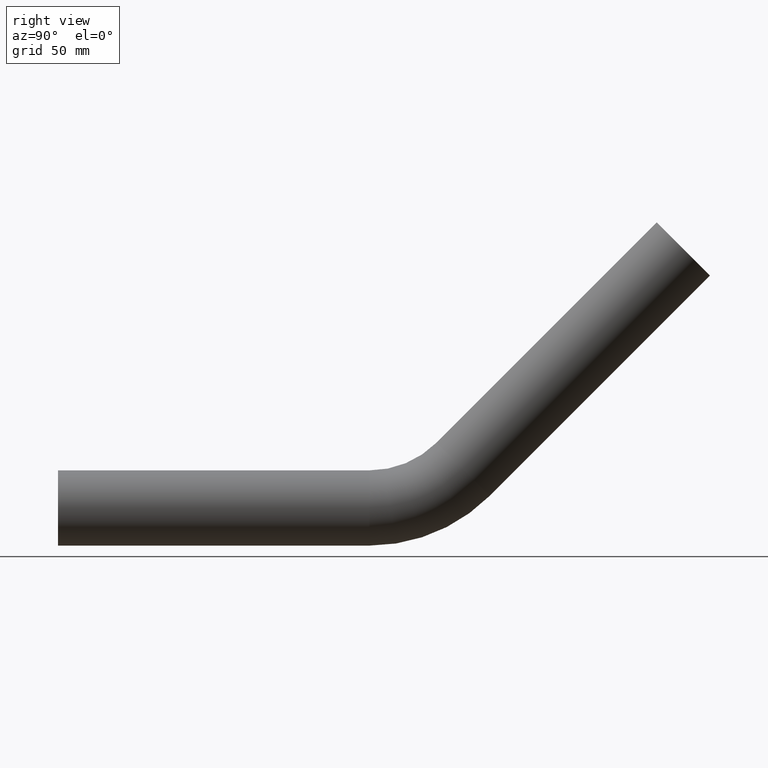
[diagram: clean part render]
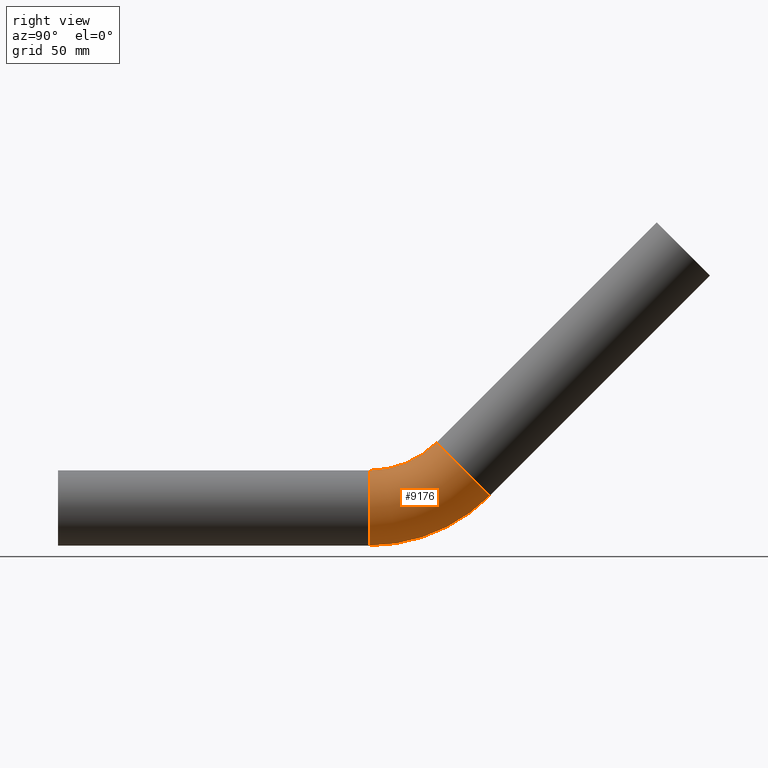
[diagram: same view with one face highlighted and labeled with its STEP entity id]
A machine part, right view. The second image highlights one B-rep face of the part: STEP entity #9176.
In plain terms, the highlighted toroidal blend (fillet) surface has major radius 85 mm and minor (blend) radius 24.15 mm.
Its self-contained STEP definition (entity closure, byte-faithful):
#342 = CIRCLE ( 'NONE', #1485, 24.14999999999999900 ) ;
#703 = CARTESIAN_POINT ( 'NONE',  ( 0.0000000000000000000, 200.0000000000000000, 85.00000000000000000 ) ) ;
#738 = CARTESIAN_POINT ( 'NONE',  ( 0.0000000000000000000, 260.1040764008566300, 24.89592359914358300 ) ) ;
#814 = DIRECTION ( 'NONE',  ( 0.0000000000000000000, 0.7071067811865460200, 0.7071067811865490200 ) ) ;
#863 = VERTEX_POINT ( 'NONE', #1984 ) ;
#977 = CARTESIAN_POINT ( 'NONE',  ( 0.0000000000000000000, 200.0000000000000000, 0.0000000000000000000 ) ) ;
#1006 = CARTESIAN_POINT ( 'NONE',  ( 2.957522019940857900E-015, 200.0000000000000000, 24.14999999999999900 ) ) ;
#1194 = VERTEX_POINT ( 'NONE', #1006 ) ;
#1274 = DIRECTION ( 'NONE',  ( 1.000000000000000000, 0.0000000000000000000, 0.0000000000000000000 ) ) ;
#1485 = AXIS2_PLACEMENT_3D ( 'NONE', #977, #7231, #4421 ) ;
#1773 = CIRCLE ( 'NONE', #11179, 60.85000000000000900 ) ;
#1937 = CIRCLE ( 'NONE', #6016, 24.15000000000000200 ) ;
#1984 = CARTESIAN_POINT ( 'NONE',  ( 2.957522019940857900E-015, 277.1807051665117600, 7.819294833488508600 ) ) ;
#2284 = CARTESIAN_POINT ( 'NONE',  ( -2.957522019940857900E-015, 200.0000000000000000, 85.00000000000000000 ) ) ;
#2969 = DIRECTION ( 'NONE',  ( 0.0000000000000000000, 0.0000000000000000000, -1.000000000000000000 ) ) ;
#3309 = CARTESIAN_POINT ( 'NONE',  ( 0.0000000000000000000, 243.0274476352014700, 41.97255236479867300 ) ) ;
#3418 = EDGE_CURVE ( 'NONE', #1194, #4617, #342, .T. ) ;
#3419 = CARTESIAN_POINT ( 'NONE',  ( 0.0000000000000000000, 200.0000000000000000, -24.14999999999999900 ) ) ;
#4261 = ORIENTED_EDGE ( 'NONE', *, *, #11164, .F. ) ;
#4421 = DIRECTION ( 'NONE',  ( 0.0000000000000000000, 0.0000000000000000000, 1.000000000000000000 ) ) ;
#4617 = VERTEX_POINT ( 'NONE', #3419 ) ;
#4640 = ORIENTED_EDGE ( 'NONE', *, *, #8865, .F. ) ;
#4844 = DIRECTION ( 'NONE',  ( 1.000000000000000000, 0.0000000000000000000, 0.0000000000000000000 ) ) ;
#5762 = VERTEX_POINT ( 'NONE', #3309 ) ;
#5906 = DIRECTION ( 'NONE',  ( 1.000000000000000000, 0.0000000000000000000, 0.0000000000000000000 ) ) ;
#6016 = AXIS2_PLACEMENT_3D ( 'NONE', #738, #814, #10489 ) ;
#6961 = DIRECTION ( 'NONE',  ( 0.0000000000000000000, 0.0000000000000000000, -1.000000000000000000 ) ) ;
#7231 = DIRECTION ( 'NONE',  ( 0.0000000000000000000, 1.000000000000000000, 0.0000000000000000000 ) ) ;
#7272 = AXIS2_PLACEMENT_3D ( 'NONE', #703, #5906, #6961 ) ;
#8539 = DIRECTION ( 'NONE',  ( 0.0000000000000000000, 0.0000000000000000000, -1.000000000000000000 ) ) ;
#8804 = ORIENTED_EDGE ( 'NONE', *, *, #3418, .T. ) ;
#8865 = EDGE_CURVE ( 'NONE', #1194, #5762, #1773, .T. ) ;
#8934 = EDGE_LOOP ( 'NONE', ( #8804, #10705, #4261, #4640 ) ) ;
#9176 = ADVANCED_FACE ( 'NONE', ( #11247 ), #10834, .T. ) ;
#9214 = AXIS2_PLACEMENT_3D ( 'NONE', #10091, #4844, #2969 ) ;
#9453 = CIRCLE ( 'NONE', #9214, 109.1499999999999900 ) ;
#10091 = CARTESIAN_POINT ( 'NONE',  ( 0.0000000000000000000, 200.0000000000000000, 85.00000000000000000 ) ) ;
#10489 = DIRECTION ( 'NONE',  ( 0.0000000000000000000, -0.7071067811865491300, 0.7071067811865458000 ) ) ;
#10705 = ORIENTED_EDGE ( 'NONE', *, *, #11005, .T. ) ;
#10834 = TOROIDAL_SURFACE ( 'NONE', #7272, 85.00000000000000000, 24.14999999999999900 ) ;
#11005 = EDGE_CURVE ( 'NONE', #4617, #863, #9453, .T. ) ;
#11164 = EDGE_CURVE ( 'NONE', #5762, #863, #1937, .T. ) ;
#11179 = AXIS2_PLACEMENT_3D ( 'NONE', #2284, #1274, #8539 ) ;
#11247 = FACE_OUTER_BOUND ( 'NONE', #8934, .T. ) ;